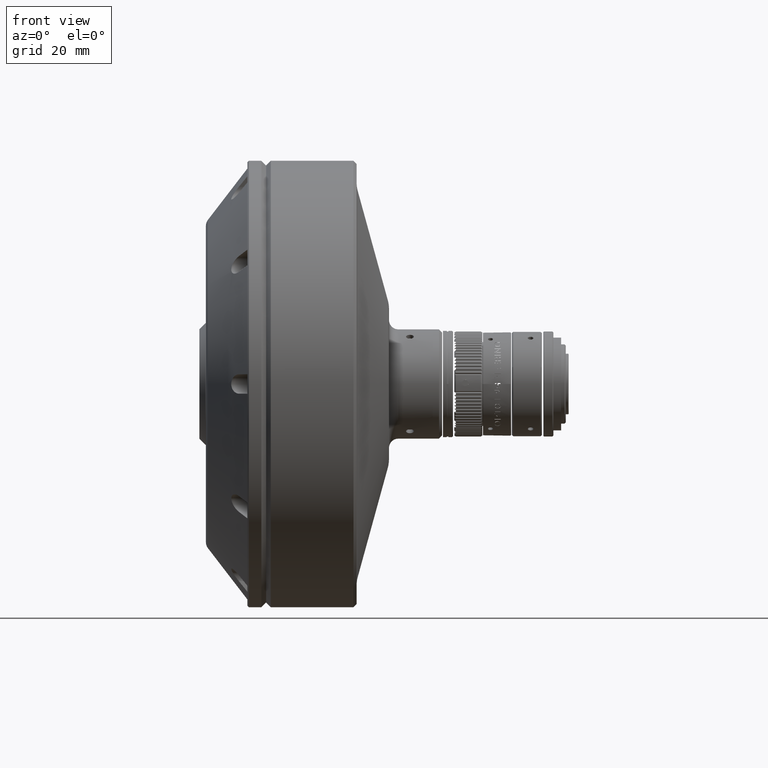
[diagram: clean part render]
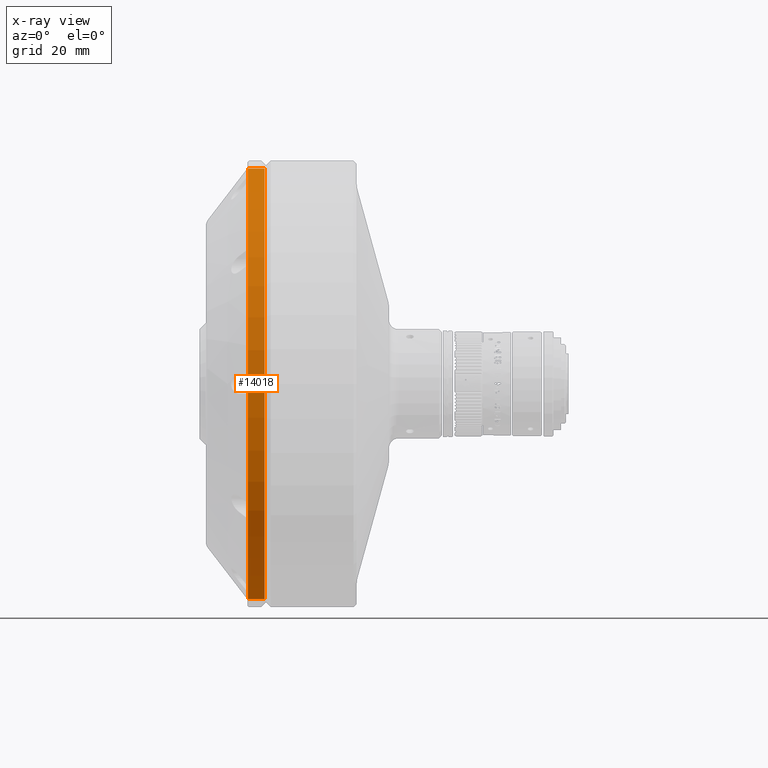
[diagram: x-ray — body ghosted, one internal face saturated and labeled with its STEP entity id]
A machine part, front view, then the same camera in x-ray: the body is ghosted and one INTERNAL B-rep face — a face not visible from any outside direction — is saturated and labeled: STEP entity #14018.
In plain terms, the highlighted cylindrical surface (partial cylindrical patch) has radius 69 mm, axis along (-1, -0, -0).
Its self-contained STEP definition (entity closure, byte-faithful):
#135 = DIRECTION ( 'NONE',  ( -1.000000000000000000, 0.0000000000000000000, 0.0000000000000000000 ) ) ;
#366 = CARTESIAN_POINT ( 'NONE',  ( -102.3399459999999834, 8.450062914116737844E-15, -69.00000000000000000 ) ) ;
#384 = DIRECTION ( 'NONE',  ( -1.000000000000000000, -0.0000000000000000000, -0.0000000000000000000 ) ) ;
#1538 = VERTEX_POINT ( 'NONE', #27646 ) ;
#4195 = ORIENTED_EDGE ( 'NONE', *, *, #21287, .T. ) ;
#5345 = DIRECTION ( 'NONE',  ( 0.0000000000000000000, 0.0000000000000000000, -1.000000000000000000 ) ) ;
#6070 = AXIS2_PLACEMENT_3D ( 'NONE', #7876, #135, #5345 ) ;
#6073 = DIRECTION ( 'NONE',  ( -1.000000000000000000, -0.0000000000000000000, -0.0000000000000000000 ) ) ;
#6079 = DIRECTION ( 'NONE',  ( -1.000000000000000000, -0.0000000000000000000, -0.0000000000000000000 ) ) ;
#6623 = EDGE_LOOP ( 'NONE', ( #24826, #18520, #4195, #20628 ) ) ;
#7728 = DIRECTION ( 'NONE',  ( 0.0000000000000000000, 0.0000000000000000000, 1.000000000000000000 ) ) ;
#7876 = CARTESIAN_POINT ( 'NONE',  ( -40.36803287576633892, 0.0000000000000000000, 0.0000000000000000000 ) ) ;
#8048 = DIRECTION ( 'NONE',  ( -1.000000000000000000, -0.0000000000000000000, -0.0000000000000000000 ) ) ;
#8075 = EDGE_CURVE ( 'NONE', #22469, #11605, #19069, .T. ) ;
#8549 = CARTESIAN_POINT ( 'NONE',  ( -35.06803287576633466, 8.450062914116737844E-15, -69.00000000000000000 ) ) ;
#9837 = CIRCLE ( 'NONE', #6070, 69.00000000000000000 ) ;
#11605 = VERTEX_POINT ( 'NONE', #18395 ) ;
#14018 = ADVANCED_FACE ( 'NONE', ( #31865 ), #21583, .F. ) ;
#14156 = CARTESIAN_POINT ( 'NONE',  ( -102.3399459999999834, 0.0000000000000000000, 0.0000000000000000000 ) ) ;
#14305 = EDGE_CURVE ( 'NONE', #22469, #1538, #17512, .T. ) ;
#16518 = DIRECTION ( 'NONE',  ( 0.0000000000000000000, 0.0000000000000000000, 1.000000000000000000 ) ) ;
#16848 = VERTEX_POINT ( 'NONE', #31580 ) ;
#17512 = CIRCLE ( 'NONE', #18601, 69.00000000000000000 ) ;
#18395 = CARTESIAN_POINT ( 'NONE',  ( -40.36803287576633892, 8.450062914116737844E-15, -69.00000000000000000 ) ) ;
#18520 = ORIENTED_EDGE ( 'NONE', *, *, #8075, .T. ) ;
#18601 = AXIS2_PLACEMENT_3D ( 'NONE', #22899, #8048, #7728 ) ;
#19069 = LINE ( 'NONE', #366, #25908 ) ;
#20628 = ORIENTED_EDGE ( 'NONE', *, *, #28150, .F. ) ;
#21287 = EDGE_CURVE ( 'NONE', #11605, #16848, #9837, .T. ) ;
#21583 = CYLINDRICAL_SURFACE ( 'NONE', #32046, 69.00000000000000000 ) ;
#22469 = VERTEX_POINT ( 'NONE', #8549 ) ;
#22899 = CARTESIAN_POINT ( 'NONE',  ( -35.06803287576633466, 0.0000000000000000000, 0.0000000000000000000 ) ) ;
#23457 = CARTESIAN_POINT ( 'NONE',  ( -102.3399459999999834, 0.0000000000000000000, 69.00000000000000000 ) ) ;
#24826 = ORIENTED_EDGE ( 'NONE', *, *, #14305, .F. ) ;
#25908 = VECTOR ( 'NONE', #6079, 1000.000000000000000 ) ;
#25953 = VECTOR ( 'NONE', #384, 1000.000000000000000 ) ;
#27646 = CARTESIAN_POINT ( 'NONE',  ( -35.06803287576633466, 0.0000000000000000000, 69.00000000000000000 ) ) ;
#28150 = EDGE_CURVE ( 'NONE', #1538, #16848, #28671, .T. ) ;
#28671 = LINE ( 'NONE', #23457, #25953 ) ;
#31580 = CARTESIAN_POINT ( 'NONE',  ( -40.36803287576633892, 0.0000000000000000000, 69.00000000000000000 ) ) ;
#31865 = FACE_OUTER_BOUND ( 'NONE', #6623, .T. ) ;
#32046 = AXIS2_PLACEMENT_3D ( 'NONE', #14156, #6073, #16518 ) ;